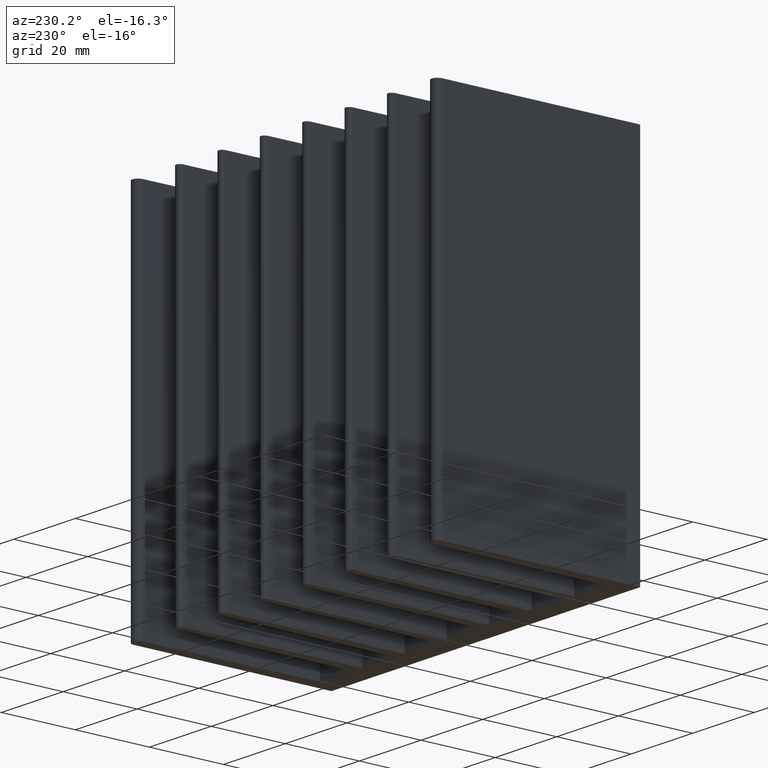
[diagram: clean part render]
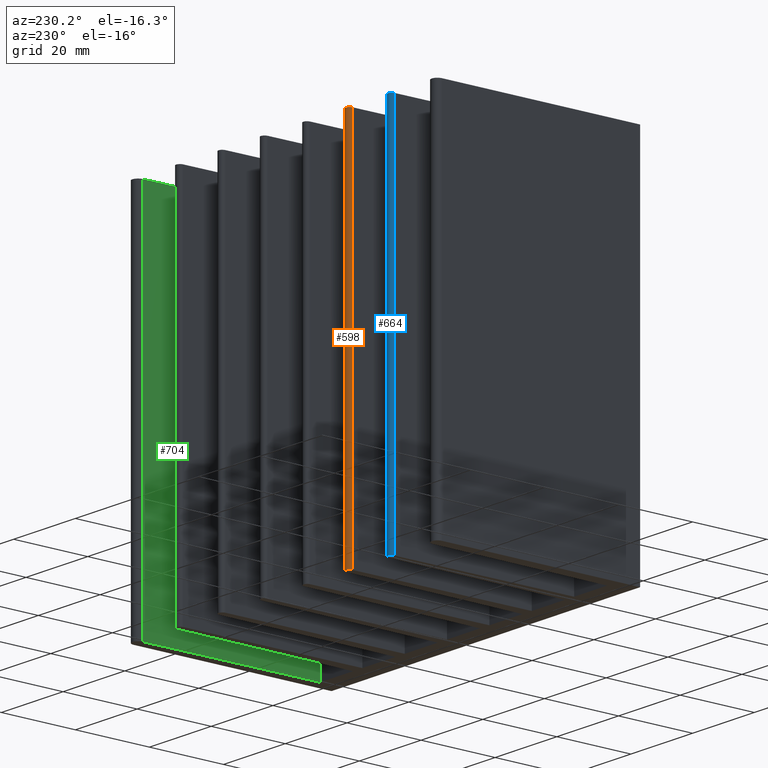
[diagram: same view with three faces highlighted in distinct colors, each labeled with its STEP entity id]
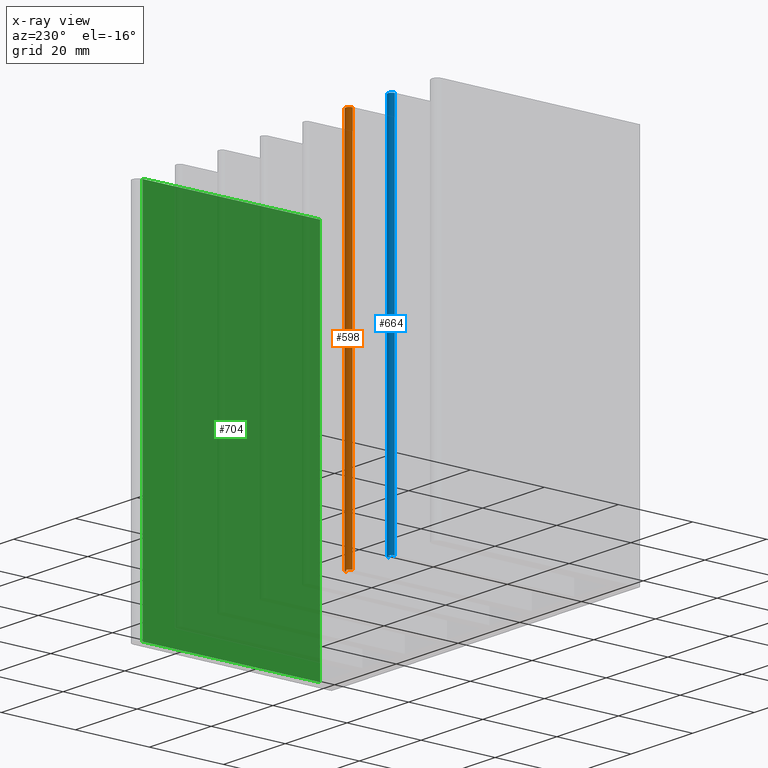
[diagram: x-ray of the same camera — body ghosted, the three highlighted faces saturated]
A machine part, auxiliary view with three faces highlighted in distinct colors.
The next image is the same camera in x-ray (body ghosted, the three faces saturated) — at least one of them is partly hidden behind the body in this view.
Their STEP definitions:

[orange] entity #598 — the highlighted cylindrical surface (edge-blend (fillet) strip) has radius 1 mm, axis along (-0, -0, -1).
#9 = DIRECTION ( 'NONE',  ( -1.000000000000000000, 0.0000000000000000000, 0.0000000000000000000 ) ) ;
#10 = CARTESIAN_POINT ( 'NONE',  ( -20.59500000000008413, 26.49999999999988631, 50.00000000000000000 ) ) ;
#15 = DIRECTION ( 'NONE',  ( -0.0000000000000000000, -0.0000000000000000000, -1.000000000000000000 ) ) ;
#42 = EDGE_LOOP ( 'NONE', ( #77, #66, #64, #49 ) ) ;
#47 = LINE ( 'NONE', #1036, #916 ) ;
#49 = ORIENTED_EDGE ( 'NONE', *, *, #1153, .T. ) ;
#64 = ORIENTED_EDGE ( 'NONE', *, *, #680, .F. ) ;
#66 = ORIENTED_EDGE ( 'NONE', *, *, #211, .F. ) ;
#77 = ORIENTED_EDGE ( 'NONE', *, *, #400, .T. ) ;
#85 = CARTESIAN_POINT ( 'NONE',  ( -21.59494576271100996, 26.51041497175127404, 50.00000000000000000 ) ) ;
#107 = AXIS2_PLACEMENT_3D ( 'NONE', #318, #346, #340 ) ;
#183 = DIRECTION ( 'NONE',  ( -0.0000000000000000000, -0.0000000000000000000, -1.000000000000000000 ) ) ;
#211 = EDGE_CURVE ( 'NONE', #532, #1122, #1124, .T. ) ;
#214 = CIRCLE ( 'NONE', #609, 1.000000000000056399 ) ;
#252 = CARTESIAN_POINT ( 'NONE',  ( -19.59505423728916185, 26.51041497175127404, 50.00000000000000000 ) ) ;
#318 = CARTESIAN_POINT ( 'NONE',  ( -20.59500000000008413, 26.49999999999988631, -50.00000000000000000 ) ) ;
#340 = DIRECTION ( 'NONE',  ( 1.000000000000000000, 0.0000000000000000000, 0.0000000000000000000 ) ) ;
#346 = DIRECTION ( 'NONE',  ( 0.0000000000000000000, 0.0000000000000000000, 1.000000000000000000 ) ) ;
#363 = VERTEX_POINT ( 'NONE', #252 ) ;
#378 = CYLINDRICAL_SURFACE ( 'NONE', #1116, 1.000000000000056399 ) ;
#400 = EDGE_CURVE ( 'NONE', #829, #1122, #582, .T. ) ;
#408 = FACE_OUTER_BOUND ( 'NONE', #42, .T. ) ;
#425 = CARTESIAN_POINT ( 'NONE',  ( -21.59494576271100996, 26.51041497175127404, 50.00000000000000000 ) ) ;
#530 = CARTESIAN_POINT ( 'NONE',  ( -20.59500000000008413, 26.49999999999988631, 50.00000000000000000 ) ) ;
#532 = VERTEX_POINT ( 'NONE', #425 ) ;
#533 = DIRECTION ( 'NONE',  ( 0.0000000000000000000, 0.0000000000000000000, 1.000000000000000000 ) ) ;
#534 = DIRECTION ( 'NONE',  ( 1.000000000000000000, 0.0000000000000000000, 0.0000000000000000000 ) ) ;
#582 = CIRCLE ( 'NONE', #107, 1.000000000000056399 ) ;
#598 = ADVANCED_FACE ( 'NONE', ( #408 ), #378, .T. ) ;
#609 = AXIS2_PLACEMENT_3D ( 'NONE', #530, #533, #534 ) ;
#680 = EDGE_CURVE ( 'NONE', #363, #532, #214, .T. ) ;
#829 = VERTEX_POINT ( 'NONE', #833 ) ;
#833 = CARTESIAN_POINT ( 'NONE',  ( -19.59505423728916185, 26.51041497175127404, -50.00000000000000000 ) ) ;
#916 = VECTOR ( 'NONE', #1026, 1000.000000000000000 ) ;
#1007 = CARTESIAN_POINT ( 'NONE',  ( -21.59494576271100996, 26.51041497175127404, -50.00000000000000000 ) ) ;
#1026 = DIRECTION ( 'NONE',  ( -0.0000000000000000000, -0.0000000000000000000, -1.000000000000000000 ) ) ;
#1036 = CARTESIAN_POINT ( 'NONE',  ( -19.59505423728916185, 26.51041497175127404, 50.00000000000000000 ) ) ;
#1087 = VECTOR ( 'NONE', #183, 1000.000000000000000 ) ;
#1116 = AXIS2_PLACEMENT_3D ( 'NONE', #10, #15, #9 ) ;
#1122 = VERTEX_POINT ( 'NONE', #1007 ) ;
#1124 = LINE ( 'NONE', #85, #1087 ) ;
#1153 = EDGE_CURVE ( 'NONE', #363, #829, #47, .T. ) ;

[blue] entity #664 — the highlighted cylindrical surface (edge-blend (fillet) strip) has radius 1 mm, axis along (-0, -0, -1).
#1 = CARTESIAN_POINT ( 'NONE',  ( -34.32500000000010232, 26.49999999999988631, 50.00000000000000000 ) ) ;
#5 = DIRECTION ( 'NONE',  ( 0.0000000000000000000, 0.0000000000000000000, 1.000000000000000000 ) ) ;
#8 = DIRECTION ( 'NONE',  ( 1.000000000000000000, 0.0000000000000000000, 0.0000000000000000000 ) ) ;
#13 = AXIS2_PLACEMENT_3D ( 'NONE', #1, #5, #8 ) ;
#30 = AXIS2_PLACEMENT_3D ( 'NONE', #462, #461, #181 ) ;
#143 = DIRECTION ( 'NONE',  ( -1.000000000000000000, 0.0000000000000000000, 0.0000000000000000000 ) ) ;
#177 = EDGE_CURVE ( 'NONE', #278, #692, #1139, .T. ) ;
#180 = CARTESIAN_POINT ( 'NONE',  ( -33.32505423728918004, 26.51041497175127404, 50.00000000000000000 ) ) ;
#181 = DIRECTION ( 'NONE',  ( 1.000000000000000000, 0.0000000000000000000, 0.0000000000000000000 ) ) ;
#224 = CYLINDRICAL_SURFACE ( 'NONE', #678, 1.000000000000056399 ) ;
#235 = FACE_OUTER_BOUND ( 'NONE', #440, .T. ) ;
#253 = CARTESIAN_POINT ( 'NONE',  ( -35.32494576271103170, 26.51041497175127404, -50.00000000000000000 ) ) ;
#278 = VERTEX_POINT ( 'NONE', #305 ) ;
#305 = CARTESIAN_POINT ( 'NONE',  ( -33.32505423728918004, 26.51041497175127404, 50.00000000000000000 ) ) ;
#317 = CARTESIAN_POINT ( 'NONE',  ( -35.32494576271103170, 26.51041497175127404, 50.00000000000000000 ) ) ;
#344 = DIRECTION ( 'NONE',  ( -0.0000000000000000000, -0.0000000000000000000, -1.000000000000000000 ) ) ;
#349 = VERTEX_POINT ( 'NONE', #253 ) ;
#351 = CARTESIAN_POINT ( 'NONE',  ( -35.32494576271103170, 26.51041497175127404, 50.00000000000000000 ) ) ;
#358 = DIRECTION ( 'NONE',  ( -0.0000000000000000000, -0.0000000000000000000, -1.000000000000000000 ) ) ;
#369 = CARTESIAN_POINT ( 'NONE',  ( -34.32500000000010232, 26.49999999999988631, 50.00000000000000000 ) ) ;
#381 = VERTEX_POINT ( 'NONE', #317 ) ;
#412 = CIRCLE ( 'NONE', #13, 1.000000000000056399 ) ;
#426 = CIRCLE ( 'NONE', #30, 1.000000000000056399 ) ;
#440 = EDGE_LOOP ( 'NONE', ( #914, #936, #953, #985 ) ) ;
#445 = EDGE_CURVE ( 'NONE', #381, #349, #523, .T. ) ;
#461 = DIRECTION ( 'NONE',  ( 0.0000000000000000000, 0.0000000000000000000, 1.000000000000000000 ) ) ;
#462 = CARTESIAN_POINT ( 'NONE',  ( -34.32500000000010232, 26.49999999999988631, -50.00000000000000000 ) ) ;
#500 = DIRECTION ( 'NONE',  ( -0.0000000000000000000, -0.0000000000000000000, -1.000000000000000000 ) ) ;
#509 = VECTOR ( 'NONE', #358, 1000.000000000000000 ) ;
#523 = LINE ( 'NONE', #351, #509 ) ;
#552 = CARTESIAN_POINT ( 'NONE',  ( -33.32505423728918004, 26.51041497175127404, -50.00000000000000000 ) ) ;
#577 = EDGE_CURVE ( 'NONE', #692, #349, #426, .T. ) ;
#581 = EDGE_CURVE ( 'NONE', #278, #381, #412, .T. ) ;
#664 = ADVANCED_FACE ( 'NONE', ( #235 ), #224, .T. ) ;
#678 = AXIS2_PLACEMENT_3D ( 'NONE', #369, #344, #143 ) ;
#692 = VERTEX_POINT ( 'NONE', #552 ) ;
#914 = ORIENTED_EDGE ( 'NONE', *, *, #577, .T. ) ;
#936 = ORIENTED_EDGE ( 'NONE', *, *, #445, .F. ) ;
#953 = ORIENTED_EDGE ( 'NONE', *, *, #581, .F. ) ;
#985 = ORIENTED_EDGE ( 'NONE', *, *, #177, .T. ) ;
#1139 = LINE ( 'NONE', #180, #1162 ) ;
#1162 = VECTOR ( 'NONE', #500, 1000.000000000000000 ) ;

[green] entity #704 — the highlighted planar face has unit normal (0.9999, -0.0105, 0).
#161 = CARTESIAN_POINT ( 'NONE',  ( 46.50000000000016342, -21.50000000000001776, -50.00000000000000000 ) ) ;
#178 = FACE_OUTER_BOUND ( 'NONE', #527, .T. ) ;
#196 = VERTEX_POINT ( 'NONE', #161 ) ;
#229 = ORIENTED_EDGE ( 'NONE', *, *, #411, .T. ) ;
#266 = DIRECTION ( 'NONE',  ( -0.0000000000000000000, -0.0000000000000000000, -1.000000000000000000 ) ) ;
#269 = CARTESIAN_POINT ( 'NONE',  ( 47.00008306797995772, 26.01578597608497745, 50.00000000000000000 ) ) ;
#275 = CARTESIAN_POINT ( 'NONE',  ( 47.00008306798002167, 26.01578597608497745, 50.00000000000000000 ) ) ;
#292 = DIRECTION ( 'NONE',  ( -0.01052398405667832881, -0.9999446213463898392, 0.0000000000000000000 ) ) ;
#327 = EDGE_CURVE ( 'NONE', #1138, #551, #761, .T. ) ;
#330 = EDGE_CURVE ( 'NONE', #1138, #828, #822, .T. ) ;
#332 = DIRECTION ( 'NONE',  ( -0.0000000000000000000, -0.0000000000000000000, -1.000000000000000000 ) ) ;
#348 = CARTESIAN_POINT ( 'NONE',  ( 47.00008306798002167, 26.01578597608497745, -50.00000000000000000 ) ) ;
#352 = DIRECTION ( 'NONE',  ( -0.01052398405667832881, -0.9999446213463898392, 0.0000000000000000000 ) ) ;
#370 = AXIS2_PLACEMENT_3D ( 'NONE', #587, #594, #597 ) ;
#411 = EDGE_CURVE ( 'NONE', #828, #196, #563, .T. ) ;
#414 = VECTOR ( 'NONE', #332, 1000.000000000000000 ) ;
#420 = LINE ( 'NONE', #430, #414 ) ;
#430 = CARTESIAN_POINT ( 'NONE',  ( 46.50000000000016342, -21.50000000000001776, 50.00000000000000000 ) ) ;
#433 = CARTESIAN_POINT ( 'NONE',  ( 46.50000000000016342, -21.50000000000001776, 50.00000000000000000 ) ) ;
#527 = EDGE_LOOP ( 'NONE', ( #229, #889, #1047, #965 ) ) ;
#531 = VECTOR ( 'NONE', #352, 1000.000000000000000 ) ;
#547 = EDGE_CURVE ( 'NONE', #551, #196, #420, .T. ) ;
#551 = VERTEX_POINT ( 'NONE', #433 ) ;
#563 = LINE ( 'NONE', #348, #531 ) ;
#583 = PLANE ( 'NONE',  #370 ) ;
#587 = CARTESIAN_POINT ( 'NONE',  ( 47.00008306798002167, 26.01578597608497745, 50.00000000000000000 ) ) ;
#594 = DIRECTION ( 'NONE',  ( 0.9999446213463898392, -0.01052398405667832881, 0.0000000000000000000 ) ) ;
#597 = DIRECTION ( 'NONE',  ( 0.01052398405667832881, 0.9999446213463898392, 0.0000000000000000000 ) ) ;
#639 = VECTOR ( 'NONE', #266, 1000.000000000000000 ) ;
#704 = ADVANCED_FACE ( 'NONE', ( #178 ), #583, .F. ) ;
#733 = VECTOR ( 'NONE', #292, 1000.000000000000000 ) ;
#761 = LINE ( 'NONE', #275, #733 ) ;
#822 = LINE ( 'NONE', #269, #639 ) ;
#828 = VERTEX_POINT ( 'NONE', #842 ) ;
#842 = CARTESIAN_POINT ( 'NONE',  ( 47.00008306797995772, 26.01578597608497745, -50.00000000000000000 ) ) ;
#889 = ORIENTED_EDGE ( 'NONE', *, *, #547, .F. ) ;
#965 = ORIENTED_EDGE ( 'NONE', *, *, #330, .T. ) ;
#1022 = CARTESIAN_POINT ( 'NONE',  ( 47.00008306797995772, 26.01578597608497745, 50.00000000000000000 ) ) ;
#1047 = ORIENTED_EDGE ( 'NONE', *, *, #327, .F. ) ;
#1138 = VERTEX_POINT ( 'NONE', #1022 ) ;